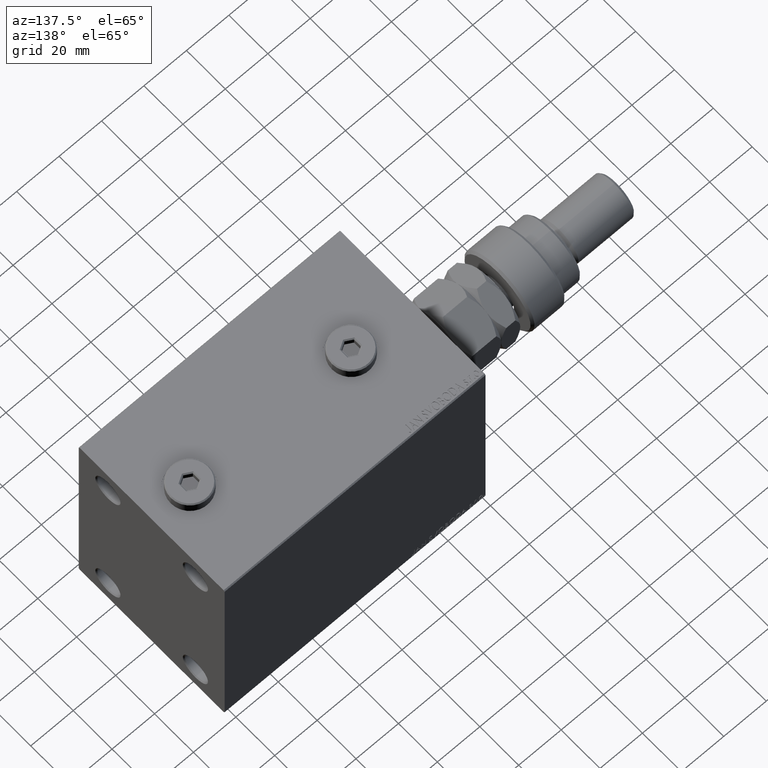
[diagram: clean part render]
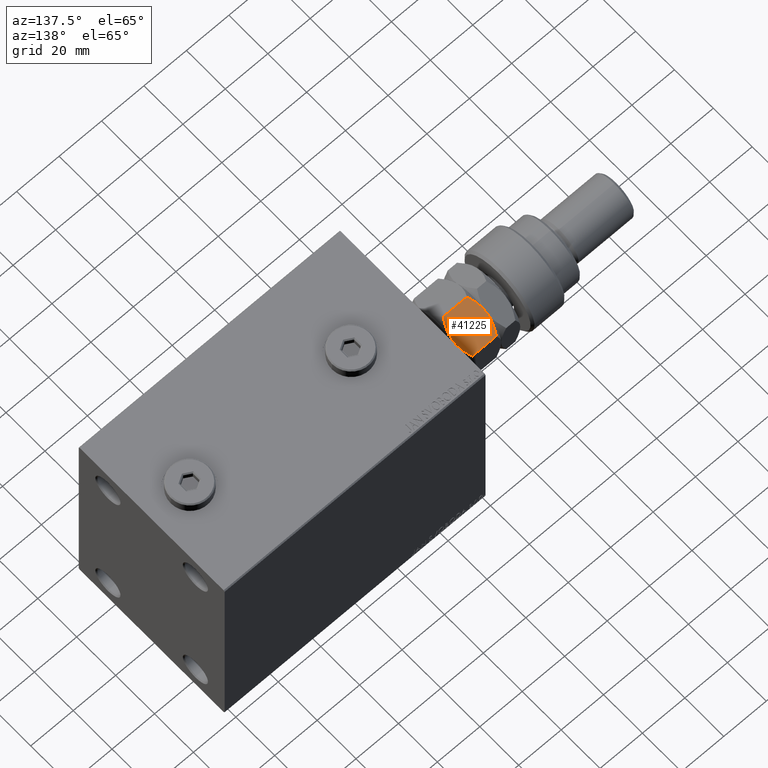
[diagram: same view with one face highlighted and labeled with its STEP entity id]
A machine part, auxiliary view. The second image highlights one B-rep face of the part: STEP entity #41225.
In plain terms, the highlighted planar face has unit normal (-0, -0.5, -0.866).
Its self-contained STEP definition (entity closure, byte-faithful):
#1597 = VERTEX_POINT ( 'NONE', #30233 ) ;
#3439 = CARTESIAN_POINT ( 'NONE',  ( 6.195449321423087241, 13.74356374221446764, 16.00000000000000355 ) ) ;
#3602 = ORIENTED_EDGE ( 'NONE', *, *, #16312, .F. ) ;
#4095 = CARTESIAN_POINT ( 'NONE',  ( 10.08691881950258740, 11.49682277995505331, 0.2303299219392160591 ) ) ;
#4124 = CARTESIAN_POINT ( 'NONE',  ( 7.500000000000000000, 12.99038105676657651, 16.00000000000000000 ) ) ;
#4325 = CARTESIAN_POINT ( 'NONE',  ( 7.499999999999997335, 12.99038105676658184, 0.000000000000000000 ) ) ;
#4545 = ORIENTED_EDGE ( 'NONE', *, *, #41129, .F. ) ;
#5291 = VECTOR ( 'NONE', #30556, 1000.000000000000000 ) ;
#8996 = VERTEX_POINT ( 'NONE', #20747 ) ;
#9151 = B_SPLINE_CURVE_WITH_KNOTS ( 'NONE', 3,
 ( #4325, #10985, #4095, #40652, #22500, #36982 ),
 .UNSPECIFIED., .F., .F.,
 ( 4, 2, 4 ),
 ( 0.008977392552884443794, 0.01343452311421656532, 0.01789165367554868685 ),
 .UNSPECIFIED. ) ;
#9210 = CARTESIAN_POINT ( 'NONE',  ( 6.176419610670692784, 13.75455055083996214, 0.05953537397470201609 ) ) ;
#10514 = ORIENTED_EDGE ( 'NONE', *, *, #39185, .F. ) ;
#10769 = CARTESIAN_POINT ( 'NONE',  ( 12.62116548881249756, 10.03367478323606221, 14.93551393225599710 ) ) ;
#10810 = CARTESIAN_POINT ( 'NONE',  ( 1.174746544192161846, 16.64226784216984356, 14.35773215783022572 ) ) ;
#10985 = CARTESIAN_POINT ( 'NONE',  ( 8.804550678576910983, 12.23719837131869426, -5.031375706690542042E-16 ) ) ;
#11061 = CARTESIAN_POINT ( 'NONE',  ( 2.383929548160350631, 15.94414570932928576, 14.93952096862913059 ) ) ;
#11922 = LINE ( 'NONE', #27840, #5291 ) ;
#12502 = EDGE_CURVE ( 'NONE', #1597, #27869, #28349, .T. ) ;
#13357 = CARTESIAN_POINT ( 'NONE',  ( 7.621669386706803087E-17, 17.32050807568877104, 2.320508075688761718 ) ) ;
#14676 = B_SPLINE_CURVE_WITH_KNOTS ( 'NONE', 3,
 ( #37970, #44872, #10769, #45104, #29648, #34292, #34052, #4124 ),
 .UNSPECIFIED., .F., .F.,
 ( 4, 2, 2, 4 ),
 ( 2.544309033641602453E-07, 0.004488823491893906975, 0.006733108022389177119, 0.008977392552884448998 ),
 .UNSPECIFIED. ) ;
#16312 = EDGE_CURVE ( 'NONE', #47951, #27869, #9151, .T. ) ;
#16552 = CARTESIAN_POINT ( 'NONE',  ( 2.378834511187503331, 15.94708733029709080, 1.064486067744004671 ) ) ;
#17021 = CARTESIAN_POINT ( 'NONE',  ( 7.499999999999997335, 12.99038105676658184, 0.000000000000000000 ) ) ;
#17331 = ORIENTED_EDGE ( 'NONE', *, *, #34804, .F. ) ;
#17941 = VERTEX_POINT ( 'NONE', #43055 ) ;
#18610 = EDGE_LOOP ( 'NONE', ( #40188, #17331, #10514, #4545, #20494, #3602 ) ) ;
#18858 = VECTOR ( 'NONE', #44057, 1000.000000000000000 ) ;
#19082 = FACE_OUTER_BOUND ( 'NONE', #18610, .T. ) ;
#20494 = ORIENTED_EDGE ( 'NONE', *, *, #12502, .T. ) ;
#20747 = CARTESIAN_POINT ( 'NONE',  ( 7.500000000000000000, 12.99038105676657651, 16.00000000000000000 ) ) ;
#21851 = CARTESIAN_POINT ( 'NONE',  ( 7.500000000000000000, 12.99038105676657651, 16.00000000000000000 ) ) ;
#22500 = CARTESIAN_POINT ( 'NONE',  ( 13.82525345580783949, 9.338494271363313004, 1.642267842169781833 ) ) ;
#22917 = EDGE_CURVE ( 'NONE', #37586, #47951, #40936, .T. ) ;
#25832 = B_SPLINE_CURVE_WITH_KNOTS ( 'NONE', 3,
 ( #21851, #3439, #29446, #11061, #10810, #46061 ),
 .UNSPECIFIED., .F., .F.,
 ( 4, 2, 4 ),
 ( 0.008977392552884448998, 0.01343452311421656706, 0.01789165367554868338 ),
 .UNSPECIFIED. ) ;
#27658 = PLANE ( 'NONE',  #43089 ) ;
#27840 = CARTESIAN_POINT ( 'NONE',  ( 0.000000000000000000, 17.32050807568877104, 16.00000000000000000 ) ) ;
#27869 = VERTEX_POINT ( 'NONE', #29543 ) ;
#28312 = CARTESIAN_POINT ( 'NONE',  ( 6.843123817691747490, 13.36962869744650639, -3.557538378468061917E-16 ) ) ;
#28349 = LINE ( 'NONE', #29081, #18858 ) ;
#29081 = CARTESIAN_POINT ( 'NONE',  ( 15.00000000000000000, 8.660254037844389075, 16.00000000000000000 ) ) ;
#29446 = CARTESIAN_POINT ( 'NONE',  ( 4.913081180497409939, 14.48393933357810504, 15.76967007806078946 ) ) ;
#29543 = CARTESIAN_POINT ( 'NONE',  ( 15.00000000000000000, 8.660254037844389075, 2.320508075688765715 ) ) ;
#29648 = CARTESIAN_POINT ( 'NONE',  ( 10.11832554202262457, 11.47869010025374514, 15.71619733805371411 ) ) ;
#30233 = CARTESIAN_POINT ( 'NONE',  ( 15.00000000000000000, 8.660254037844389075, 13.67949192431123784 ) ) ;
#30556 = DIRECTION ( 'NONE',  ( -0.000000000000000000, -0.000000000000000000, -1.000000000000000000 ) ) ;
#30850 = DIRECTION ( 'NONE',  ( 0.8660254037844387076, -0.4999999999999997224, 0.000000000000000000 ) ) ;
#31521 = CARTESIAN_POINT ( 'NONE',  ( 1.176108425306640504, 16.64148155974179843, 1.641481559741787111 ) ) ;
#34052 = CARTESIAN_POINT ( 'NONE',  ( 8.156876182308252510, 12.61113341608665728, 16.00000000000000355 ) ) ;
#34292 = CARTESIAN_POINT ( 'NONE',  ( 8.823580389329306328, 12.22621156269319798, 15.94046462602529957 ) ) ;
#34777 = DIRECTION ( 'NONE',  ( -0.4999999999999997780, -0.8660254037844388186, 0.000000000000000000 ) ) ;
#34804 = EDGE_CURVE ( 'NONE', #17941, #37586, #11922, .T. ) ;
#36982 = CARTESIAN_POINT ( 'NONE',  ( 15.00000000000000000, 8.660254037844389075, 2.320508075688765715 ) ) ;
#37586 = VERTEX_POINT ( 'NONE', #44089 ) ;
#37970 = CARTESIAN_POINT ( 'NONE',  ( 15.00000000000000000, 8.660254037844389075, 13.67949192431123784 ) ) ;
#38930 = CARTESIAN_POINT ( 'NONE',  ( 15.00000000000000000, 8.660254037844389075, 16.00000000000000000 ) ) ;
#39185 = EDGE_CURVE ( 'NONE', #8996, #17941, #25832, .T. ) ;
#40188 = ORIENTED_EDGE ( 'NONE', *, *, #22917, .F. ) ;
#40652 = CARTESIAN_POINT ( 'NONE',  ( 12.61607045183964715, 10.03661640420386902, 1.060479031370879843 ) ) ;
#40936 = B_SPLINE_CURVE_WITH_KNOTS ( 'NONE', 3,
 ( #13357, #31521, #16552, #42817, #43290, #9210, #28312, #17021 ),
 .UNSPECIFIED., .F., .F.,
 ( 4, 2, 2, 4 ),
 ( 2.544309033652185071E-07, 0.004488823491893902638, 0.006733108022389172782, 0.008977392552884443794 ),
 .UNSPECIFIED. ) ;
#41129 = EDGE_CURVE ( 'NONE', #1597, #8996, #14676, .T. ) ;
#41225 = ADVANCED_FACE ( 'NONE', ( #19082 ), #27658, .F. ) ;
#42817 = CARTESIAN_POINT ( 'NONE',  ( 4.247772349543482484, 14.86805556622358893, 0.4475714085130255149 ) ) ;
#43055 = CARTESIAN_POINT ( 'NONE',  ( 3.803331551779305683E-16, 17.32050807568877104, 13.67949192431124317 ) ) ;
#43089 = AXIS2_PLACEMENT_3D ( 'NONE', #38930, #34777, #30850 ) ;
#43290 = CARTESIAN_POINT ( 'NONE',  ( 4.881674457977373649, 14.50207201327941320, 0.2838026619462936107 ) ) ;
#44057 = DIRECTION ( 'NONE',  ( -0.000000000000000000, -0.000000000000000000, -1.000000000000000000 ) ) ;
#44089 = CARTESIAN_POINT ( 'NONE',  ( 7.621669386706803087E-17, 17.32050807568877104, 2.320508075688761718 ) ) ;
#44872 = CARTESIAN_POINT ( 'NONE',  ( 13.82389157469336283, 9.339280553791368789, 14.35851844025821400 ) ) ;
#45104 = CARTESIAN_POINT ( 'NONE',  ( 10.75222765045651663, 11.11270654730956586, 15.55242859148697576 ) ) ;
#46061 = CARTESIAN_POINT ( 'NONE',  ( 3.803331551779305683E-16, 17.32050807568877104, 13.67949192431124317 ) ) ;
#47153 = CARTESIAN_POINT ( 'NONE',  ( 7.499999999999997335, 12.99038105676658184, 0.000000000000000000 ) ) ;
#47951 = VERTEX_POINT ( 'NONE', #47153 ) ;